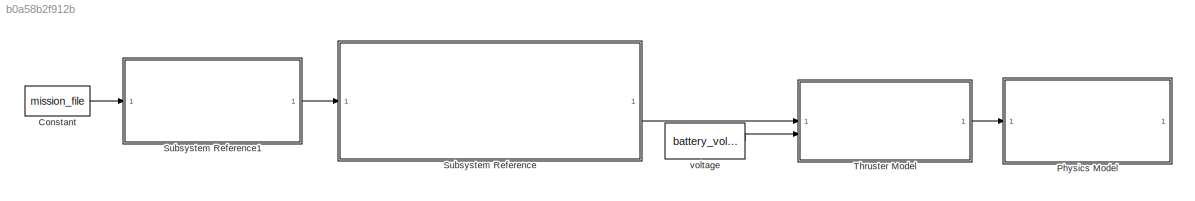
MODEL slx_b0a58b2f912b
KIND model
CONFIG AbsTol = abs_tol
CONFIG EnableMultiTasking = off
CONFIG FixedStep = dt_sim
CONFIG MaxStep = auto
CONFIG MinStep = auto
CONFIG RelTol = rel_tol
CONFIG SampleTimeConstraint = Unconstrained
CONFIG SolverName = FixedStepAuto
CONFIG StartTime = 0.0
CONFIG StopTime = tspan
BLOCK [Constant] Constant
  Value = mission_file
BLOCK [SubSystem] Physics Model
  ReferencedSubsystem = plant
BLOCK [SubSystem] Subsystem Reference
  ReferencedSubsystem = controller
BLOCK [SubSystem] Subsystem Reference1
  ReferencedSubsystem = mission_file_parser
BLOCK [SubSystem] Thruster Model
  ReferencedSubsystem = pwm_to_force
BLOCK [Constant] voltage
  Value = battery_voltage
LINE Constant:1 -> Subsystem Reference1:1
LINE Subsystem Reference1:1 -> Subsystem Reference:1
LINE Subsystem Reference:1 -> Thruster Model:1
LINE Thruster Model:1 -> Physics Model:1
LINE voltage:1 -> Thruster Model:2
